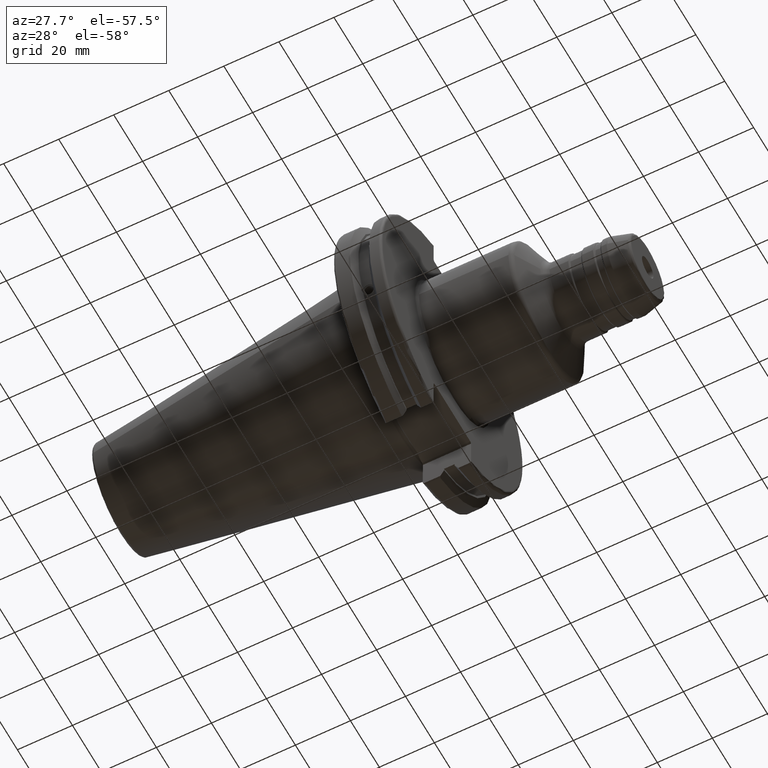
[diagram: clean part render]
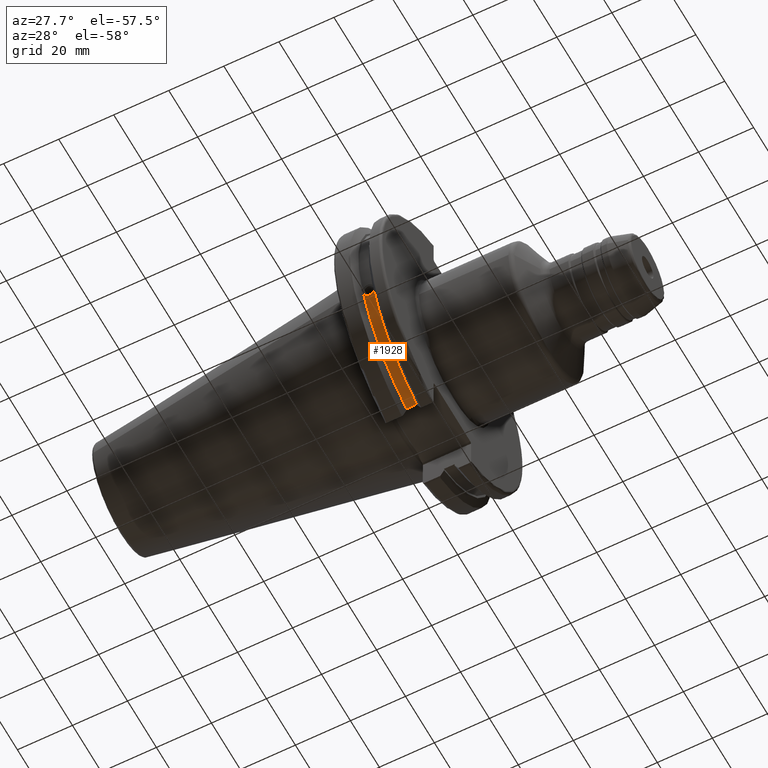
[diagram: same view with one face highlighted and labeled with its STEP entity id]
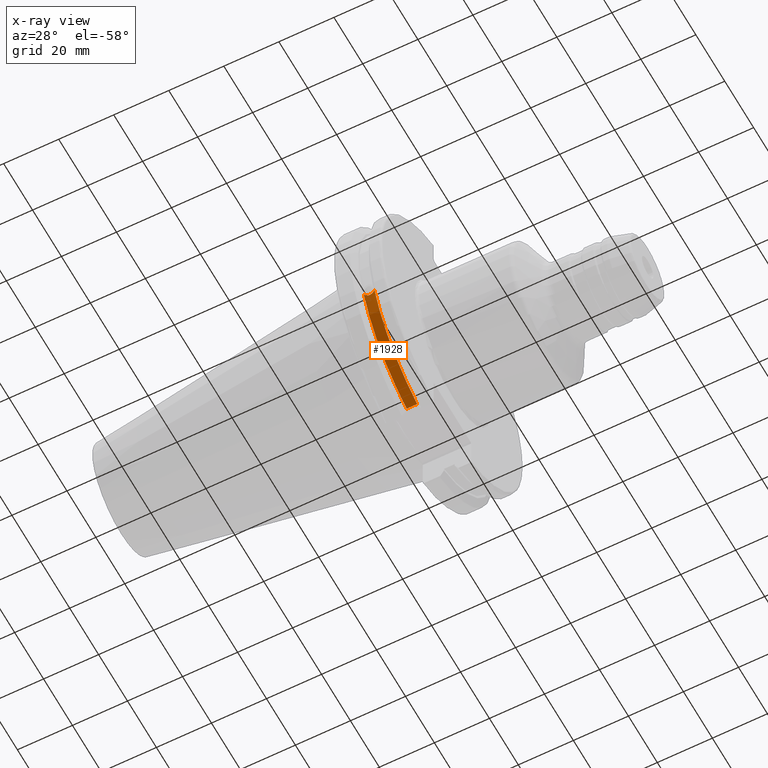
[diagram: x-ray of the same camera — body ghosted, the highlighted face saturated]
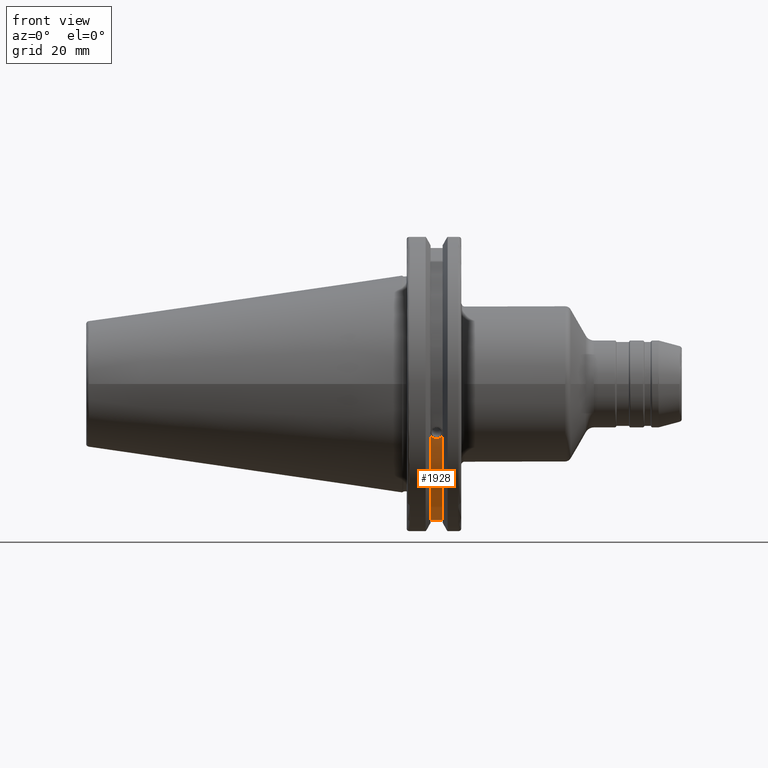
[diagram: same view with one face highlighted and labeled with its STEP entity id]
A machine part, auxiliary view. The second image highlights one B-rep face of the part: STEP entity #1928.
The next image is the same camera in x-ray: the body ghosted, the highlighted face saturated — about 0% of this face is hidden behind the body in this view.
A second angle (front view) of the same face is appended — the face is thin or edge-on in the first view.
In plain terms, the highlighted cylindrical surface (partial cylindrical patch) has radius 45.6435 mm, axis along (1, 0, 0).
Its self-contained STEP definition (entity closure, byte-faithful):
#47=B_SPLINE_CURVE_WITH_KNOTS('',3,(#3302,#3303,#3304,#3305,#3306,#3307,
#3308,#3309,#3310,#3311,#3312,#3313,#3314,#3315,#3316),.UNSPECIFIED.,.F.,
 .F.,(4,2,2,3,2,2,4),(-0.231381164054419,-0.158232381135623,-0.0791161905678117,
0.,0.0791161905678116,0.158232381135623,0.231381164054565),
 .UNSPECIFIED.);
#191=LINE('',#3374,#297);
#297=VECTOR('',#2572,10.);
#379=CYLINDRICAL_SURFACE('',#2148,45.6435);
#442=FACE_OUTER_BOUND('',#561,.T.);
#561=EDGE_LOOP('',(#1525,#1526,#1527,#1528));
#719=CIRCLE('',#2147,45.6435);
#720=CIRCLE('',#2149,45.6435);
#857=VERTEX_POINT('',#3299);
#858=VERTEX_POINT('',#3301);
#871=VERTEX_POINT('',#3368);
#872=VERTEX_POINT('',#3372);
#1091=EDGE_CURVE('',#858,#857,#47,.T.);
#1109=EDGE_CURVE('',#858,#871,#719,.T.);
#1111=EDGE_CURVE('',#857,#872,#720,.T.);
#1112=EDGE_CURVE('',#872,#871,#191,.T.);
#1525=ORIENTED_EDGE('',*,*,#1091,.T.);
#1526=ORIENTED_EDGE('',*,*,#1111,.T.);
#1527=ORIENTED_EDGE('',*,*,#1112,.T.);
#1528=ORIENTED_EDGE('',*,*,#1109,.F.);
#1928=ADVANCED_FACE('',(#442),#379,.T.);
#2147=AXIS2_PLACEMENT_3D('',#3369,#2565,#2566);
#2148=AXIS2_PLACEMENT_3D('',#3371,#2568,#2569);
#2149=AXIS2_PLACEMENT_3D('',#3373,#2570,#2571);
#2565=DIRECTION('center_axis',(1.,0.,0.));
#2566=DIRECTION('ref_axis',(0.,0.,-1.));
#2568=DIRECTION('center_axis',(1.,0.,0.));
#2569=DIRECTION('ref_axis',(0.,1.,0.));
#2570=DIRECTION('center_axis',(1.,0.,0.));
#2571=DIRECTION('ref_axis',(0.,0.,-1.));
#2572=DIRECTION('',(1.,0.,0.));
#3299=CARTESIAN_POINT('',(9.2191,-42.5884454651059,-16.4180816515115));
#3301=CARTESIAN_POINT('',(13.0491,-42.5884454651059,-16.4180816515115));
#3302=CARTESIAN_POINT('Ctrl Pts',(13.0491,-42.5884454651059,-16.4180816515115));
#3303=CARTESIAN_POINT('Ctrl Pts',(12.9428782240206,-42.5035323832641,-16.6383458840848));
#3304=CARTESIAN_POINT('Ctrl Pts',(12.791391924423,-42.4245077186417,-16.8380515255915));
#3305=CARTESIAN_POINT('Ctrl Pts',(12.4325949659982,-42.2908173017388,-17.1712159412199));
#3306=CARTESIAN_POINT('Ctrl Pts',(12.1964796719457,-42.2294695309474,-17.3208689126276));
#3307=CARTESIAN_POINT('Ctrl Pts',(11.6790940832128,-42.1475978938586,-17.5191491957165));
#3308=CARTESIAN_POINT('Ctrl Pts',(11.397820635226,-42.1271980081205,-17.5678194501937));
#3309=CARTESIAN_POINT('Ctrl Pts',(11.1341,-42.1271980081205,-17.5678194501937));
#3310=CARTESIAN_POINT('Ctrl Pts',(10.870379364774,-42.1271980081205,-17.5678194501937));
#3311=CARTESIAN_POINT('Ctrl Pts',(10.5891059167872,-42.1475978938586,-17.5191491957165));
#3312=CARTESIAN_POINT('Ctrl Pts',(10.0717203280543,-42.2294695309474,-17.3208689126276));
#3313=CARTESIAN_POINT('Ctrl Pts',(9.83560503400179,-42.2908173017388,-17.1712159412199));
#3314=CARTESIAN_POINT('Ctrl Pts',(9.47680807557665,-42.4245077186418,-16.8380515255912));
#3315=CARTESIAN_POINT('Ctrl Pts',(9.32532177598175,-42.5035323832622,-16.6383458840897));
#3316=CARTESIAN_POINT('Ctrl Pts',(9.21909999999999,-42.5884454651059,-16.4180816515115));
#3368=CARTESIAN_POINT('',(13.0491,-12.95,-43.7678716897452));
#3369=CARTESIAN_POINT('Origin',(13.0491,0.,0.));
#3371=CARTESIAN_POINT('Origin',(11.1341,0.,0.));
#3372=CARTESIAN_POINT('',(9.2191,-12.95,-43.7678716897452));
#3373=CARTESIAN_POINT('Origin',(9.2191,0.,0.));
#3374=CARTESIAN_POINT('',(11.1341,-12.95,-43.7678716897452));